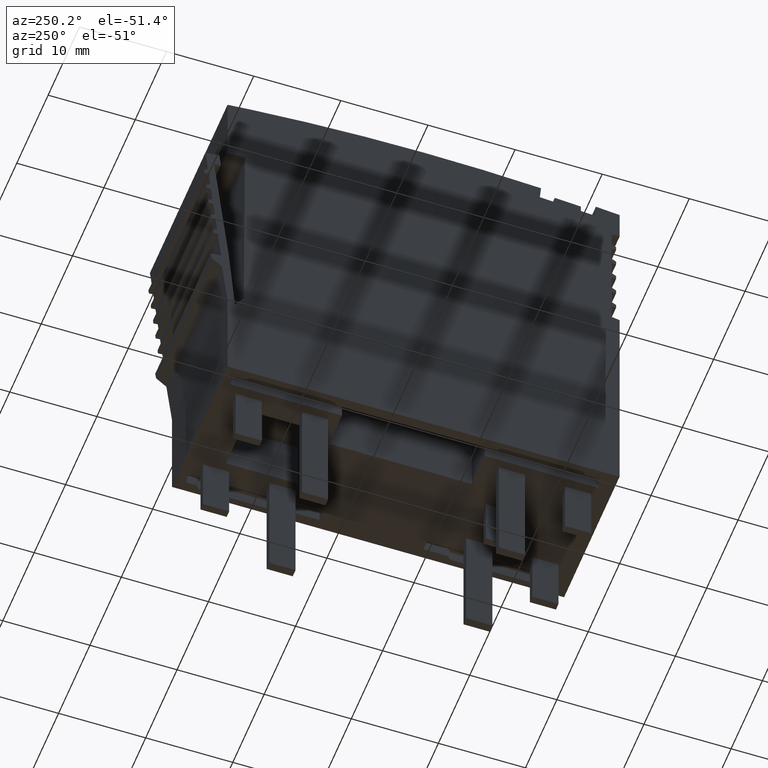
[diagram: clean part render]
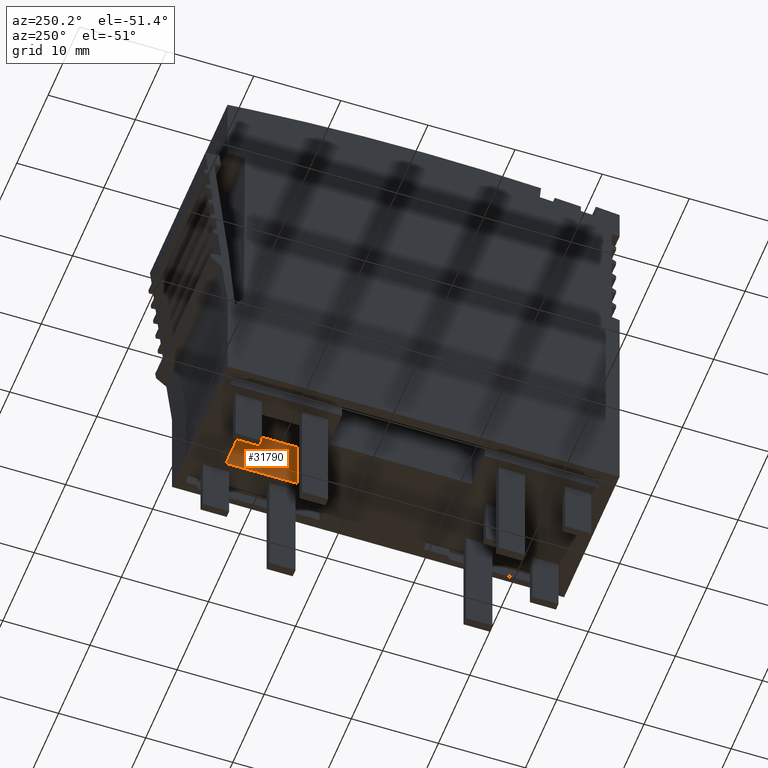
[diagram: same view with one face highlighted and labeled with its STEP entity id]
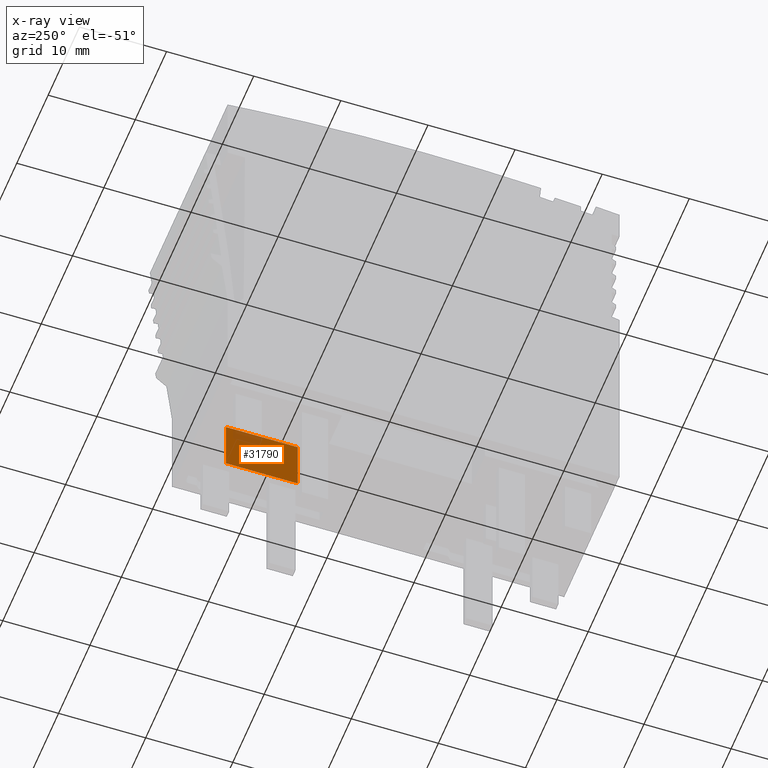
[diagram: x-ray of the same camera — body ghosted, the highlighted face saturated]
A machine part, auxiliary view. The second image highlights one B-rep face of the part: STEP entity #31790.
The next image is the same camera in x-ray: the body ghosted, the highlighted face saturated — about 10% of this face is hidden behind the body in this view.
In plain terms, the highlighted planar face has unit normal (-1, 0, 0).
Its self-contained STEP definition (entity closure, byte-faithful):
#16650=CARTESIAN_POINT('',(111.236365997237,56.4590821833395,
-6.09924445797375));
#16660=DIRECTION('',(1.,1.84143408459452E-26,-1.50463276905253E-36));
#16670=VECTOR('',#16660,1.);
#16680=LINE('',#16650,#16670);
#16690=CARTESIAN_POINT('',(126.044359175953,56.4590821833395,
-6.09924445797375));
#16700=VERTEX_POINT('',#16690);
#16710=CARTESIAN_POINT('',(134.253819951964,56.4590821833395,
-6.09924445797375));
#16720=VERTEX_POINT('',#16710);
#16730=EDGE_CURVE('',#16700,#16720,#16680,.T.);
#31300=CARTESIAN_POINT('',(134.253819951964,62.7321823478153,
-6.09924445797375));
#31310=VERTEX_POINT('',#31300);
#31340=CARTESIAN_POINT('',(111.236365997237,62.7321823478153,
-6.09924445797375));
#31350=DIRECTION('',(-1.,3.6978778143606E-23,1.50463276905253E-36));
#31360=VECTOR('',#31350,1.);
#31370=LINE('',#31340,#31360);
#31380=CARTESIAN_POINT('',(126.044359175953,62.7321823478153,
-6.09924445797375));
#31390=VERTEX_POINT('',#31380);
#31400=EDGE_CURVE('',#31310,#31390,#31370,.T.);
#31580=CARTESIAN_POINT('',(134.253819951964,56.4590821833395,
-6.09924445797375));
#31590=DIRECTION('',(1.50463225809425E-36,2.77478453548207E-17,1.));
#31600=DIRECTION('',(1.,1.84143408459393E-26,-1.50463276905253E-36));
#31610=AXIS2_PLACEMENT_3D('',#31580,#31590,#31600);
#31620=PLANE('',#31610);
#31630=CARTESIAN_POINT('',(126.044359175953,38.060123,-6.09924445797375)
);
#31640=DIRECTION('',(-1.8414001015368E-26,1.,-2.77478453548207E-17));
#31650=VECTOR('',#31640,1.);
#31660=LINE('',#31630,#31650);
#31670=EDGE_CURVE('',#16700,#31390,#31660,.T.);
#31680=ORIENTED_EDGE('',*,*,#31670,.F.);
#31690=ORIENTED_EDGE('',*,*,#31400,.T.);
#31700=CARTESIAN_POINT('',(134.253819951964,38.060123,-6.09924445797375)
);
#31710=DIRECTION('',(-1.8414001015368E-26,1.,-2.77478453548207E-17));
#31720=VECTOR('',#31710,1.);
#31730=LINE('',#31700,#31720);
#31740=EDGE_CURVE('',#16720,#31310,#31730,.T.);
#31750=ORIENTED_EDGE('',*,*,#31740,.T.);
#31760=ORIENTED_EDGE('',*,*,#16730,.T.);
#31770=EDGE_LOOP('',(#31760,#31750,#31690,#31680));
#31780=FACE_OUTER_BOUND('',#31770,.T.);
#31790=ADVANCED_FACE('',(#31780),#31620,.T.);